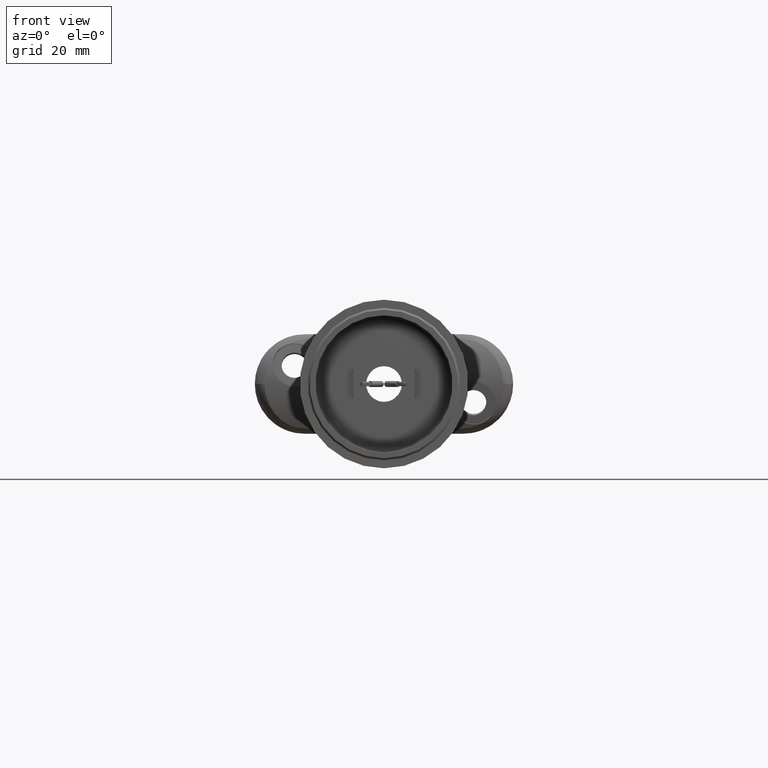
[diagram: clean part render]
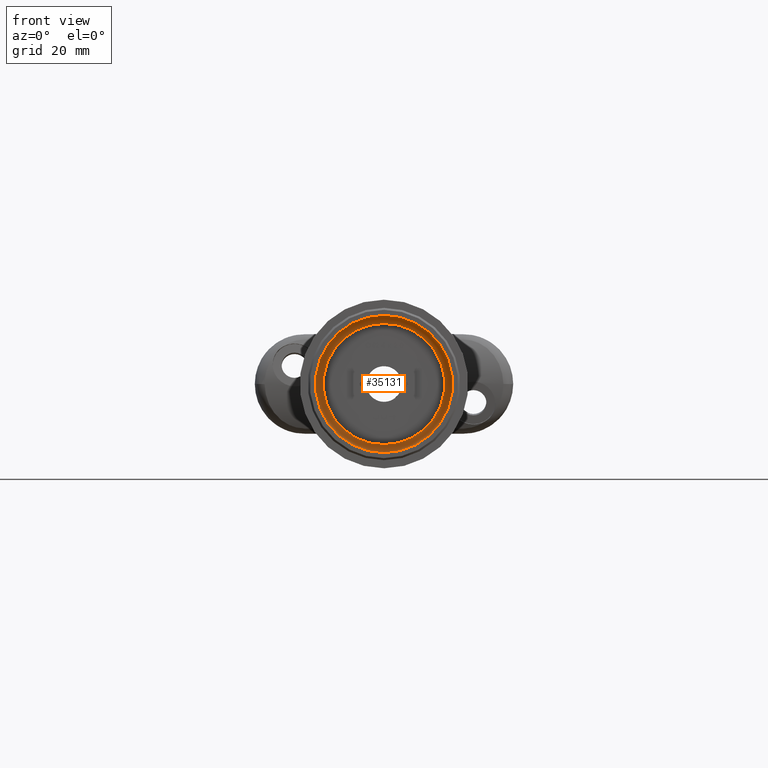
[diagram: same view with one face highlighted and labeled with its STEP entity id]
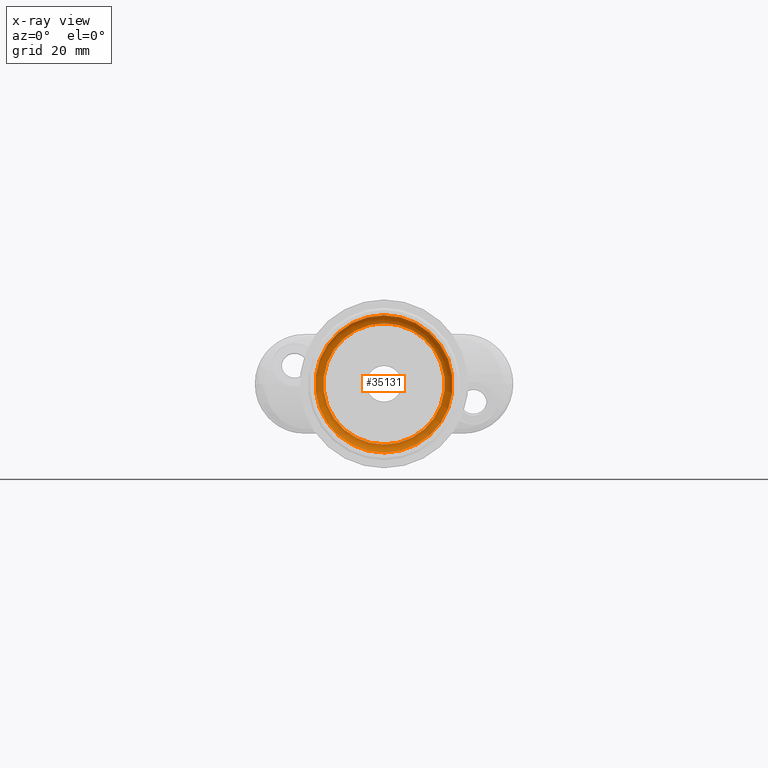
[diagram: x-ray of the same camera — body ghosted, the highlighted face saturated]
A machine part, front view. The second image highlights one B-rep face of the part: STEP entity #35131.
The next image is the same camera in x-ray: the body ghosted, the highlighted face saturated — about 0% of this face is hidden behind the body in this view.
In plain terms, the highlighted toroidal blend (fillet) surface has major radius 15.25 mm and minor (blend) radius 2 mm.
Its self-contained STEP definition (entity closure, byte-faithful):
#638 = VERTEX_POINT ( 'NONE', #29385 ) ;
#3073 = CARTESIAN_POINT ( 'NONE',  ( 0.0000000000000000000, 4.770489558936220300E-015, -17.25000000000000000 ) ) ;
#3522 = DIRECTION ( 'NONE',  ( -0.0000000000000000000, -1.000000000000000000, -0.0000000000000000000 ) ) ;
#4237 = CARTESIAN_POINT ( 'NONE',  ( 0.0000000000000000000, 4.770489558936220300E-015, 0.0000000000000000000 ) ) ;
#5846 = EDGE_CURVE ( 'NONE', #638, #638, #26129, .T. ) ;
#7238 = DIRECTION ( 'NONE',  ( 0.0000000000000000000, 0.0000000000000000000, -1.000000000000000000 ) ) ;
#7414 = ORIENTED_EDGE ( 'NONE', *, *, #26261, .T. ) ;
#8223 = CIRCLE ( 'NONE', #40319, 17.25000000000000000 ) ;
#8459 = VERTEX_POINT ( 'NONE', #3073 ) ;
#13069 = DIRECTION ( 'NONE',  ( -0.0000000000000000000, -1.000000000000000000, -0.0000000000000000000 ) ) ;
#13166 = EDGE_LOOP ( 'NONE', ( #42067 ) ) ;
#15502 = CARTESIAN_POINT ( 'NONE',  ( 0.0000000000000000000, 4.770489558936220300E-015, 0.0000000000000000000 ) ) ;
#16566 = CARTESIAN_POINT ( 'NONE',  ( 0.0000000000000000000, 2.000000000000004900, 0.0000000000000000000 ) ) ;
#26129 = CIRCLE ( 'NONE', #33710, 15.25000000000000200 ) ;
#26261 = EDGE_CURVE ( 'NONE', #8459, #8459, #8223, .T. ) ;
#27354 = EDGE_LOOP ( 'NONE', ( #7414 ) ) ;
#28272 = FACE_OUTER_BOUND ( 'NONE', #27354, .T. ) ;
#29385 = CARTESIAN_POINT ( 'NONE',  ( 0.0000000000000000000, 2.000000000000004900, -15.25000000000000200 ) ) ;
#33710 = AXIS2_PLACEMENT_3D ( 'NONE', #16566, #3522, #50432 ) ;
#35131 = ADVANCED_FACE ( 'NONE', ( #28272, #50696 ), #52019, .F. ) ;
#35644 = AXIS2_PLACEMENT_3D ( 'NONE', #15502, #40531, #7238 ) ;
#38456 = DIRECTION ( 'NONE',  ( 0.0000000000000000000, 0.0000000000000000000, -1.000000000000000000 ) ) ;
#40319 = AXIS2_PLACEMENT_3D ( 'NONE', #4237, #13069, #38456 ) ;
#40531 = DIRECTION ( 'NONE',  ( -0.0000000000000000000, -1.000000000000000000, -0.0000000000000000000 ) ) ;
#42067 = ORIENTED_EDGE ( 'NONE', *, *, #5846, .F. ) ;
#50432 = DIRECTION ( 'NONE',  ( 0.0000000000000000000, 0.0000000000000000000, -1.000000000000000000 ) ) ;
#50696 = FACE_OUTER_BOUND ( 'NONE', #13166, .T. ) ;
#52019 = TOROIDAL_SURFACE ( 'NONE', #35644, 15.25000000000000200, 1.999999999999998200 ) ;